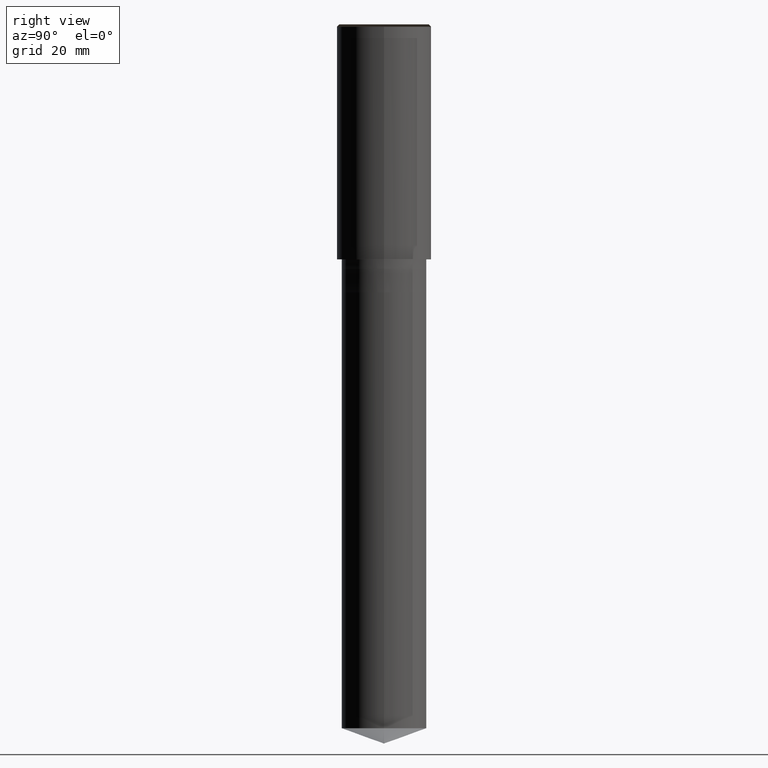
[diagram: clean part render]
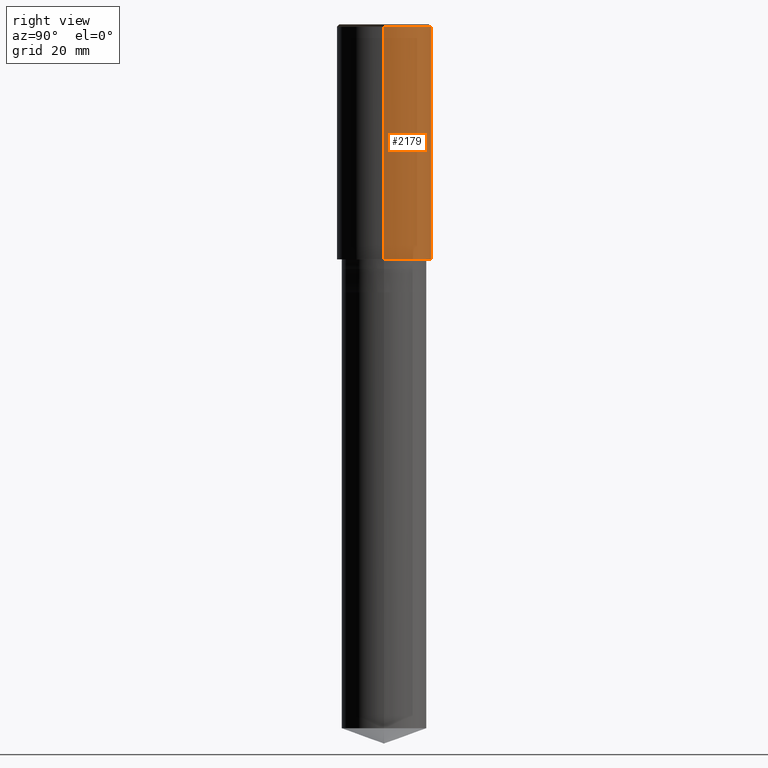
[diagram: same view with one face highlighted and labeled with its STEP entity id]
A machine part, right view. The second image highlights one B-rep face of the part: STEP entity #2179.
In plain terms, the highlighted face is a freeform B-spline surface patch.
Its self-contained STEP definition (entity closure, byte-faithful):
#1940=CARTESIAN_POINT('',(10.0,0.0,0.0));
#1941=CARTESIAN_POINT('',(10.0,10.0,0.0));
#1942=CARTESIAN_POINT('',(0.0,10.0,0.0));
#1943=CARTESIAN_POINT('',(-10.0,10.0,0.0));
#1944=CARTESIAN_POINT('',(-10.0,0.0,0.0));
#1945=CARTESIAN_POINT('',(10.0,0.0,49.5));
#1946=CARTESIAN_POINT('',(10.0,10.0,49.5));
#1947=CARTESIAN_POINT('',(0.0,10.0,49.5));
#1948=CARTESIAN_POINT('',(-10.0,10.0,49.5));
#1949=CARTESIAN_POINT('',(-10.0,0.0,49.5));
#2160=(
BOUNDED_SURFACE()
B_SPLINE_SURFACE(1,2,(
(#1940,#1941,#1942,#1943,#1944),
(#1945,#1946,#1947,#1948,#1949)
), .UNSPECIFIED.,.F.,.F.,.F.)
B_SPLINE_SURFACE_WITH_KNOTS((2,2),(3,2,3),(
0.0,1.0),(
0.0,0.5,1.0), .UNSPECIFIED.)
GEOMETRIC_REPRESENTATION_ITEM()
RATIONAL_B_SPLINE_SURFACE(((1.0,0.707106781187,1.0,0.707106781187,1.0),
(1.0,0.707106781187,1.0,0.707106781187,1.0)
))
REPRESENTATION_ITEM('')
SURFACE()
);
#2161=(
BOUNDED_CURVE()
B_SPLINE_CURVE(2,(#1944,#1943,#1942,#1941,#1940),.UNSPECIFIED.,.F.,.F.)
B_SPLINE_CURVE_WITH_KNOTS((3,2,3),
(0.0,0.5,1.0),.UNSPECIFIED.)
CURVE()
GEOMETRIC_REPRESENTATION_ITEM()
RATIONAL_B_SPLINE_CURVE((1.0,0.707106781187,1.0,0.707106781187,1.0))
REPRESENTATION_ITEM('')
);
#2162=(
BOUNDED_CURVE()
B_SPLINE_CURVE(1,(#1940,#1945),.UNSPECIFIED.,.F.,.F.)
B_SPLINE_CURVE_WITH_KNOTS((2,2),
(0.0,1.0),.UNSPECIFIED.)
CURVE()
GEOMETRIC_REPRESENTATION_ITEM()
RATIONAL_B_SPLINE_CURVE((1.0,1.0))
REPRESENTATION_ITEM('')
);
#2163=(
BOUNDED_CURVE()
B_SPLINE_CURVE(2,(#1945,#1946,#1947,#1948,#1949),.UNSPECIFIED.,.F.,.F.)
B_SPLINE_CURVE_WITH_KNOTS((3,2,3),
(0.0,0.5,1.0),.UNSPECIFIED.)
CURVE()
GEOMETRIC_REPRESENTATION_ITEM()
RATIONAL_B_SPLINE_CURVE((1.0,0.707106781187,1.0,0.707106781187,1.0))
REPRESENTATION_ITEM('')
);
#2164=(
BOUNDED_CURVE()
B_SPLINE_CURVE(1,(#1949,#1944),.UNSPECIFIED.,.F.,.F.)
B_SPLINE_CURVE_WITH_KNOTS((2,2),
(0.0,1.0),.UNSPECIFIED.)
CURVE()
GEOMETRIC_REPRESENTATION_ITEM()
RATIONAL_B_SPLINE_CURVE((1.0,1.0))
REPRESENTATION_ITEM('')
);
#2165=VERTEX_POINT('',#1940);
#2166=VERTEX_POINT('',#1944);
#2167=VERTEX_POINT('',#1945);
#2168=VERTEX_POINT('',#1949);
#2169=EDGE_CURVE('',#2166,#2165,#2161,.T.);
#2170=EDGE_CURVE('',#2165,#2167,#2162,.T.);
#2171=EDGE_CURVE('',#2167,#2168,#2163,.T.);
#2172=EDGE_CURVE('',#2168,#2166,#2164,.T.);
#2173=ORIENTED_EDGE('',*,*,#2169,.T.);
#2174=ORIENTED_EDGE('',*,*,#2170,.T.);
#2175=ORIENTED_EDGE('',*,*,#2171,.T.);
#2176=ORIENTED_EDGE('',*,*,#2172,.T.);
#2177=EDGE_LOOP('',(#2173,#2174,#2175,#2176));
#2178=FACE_OUTER_BOUND('',#2177,.T.);
#2179=ADVANCED_FACE('',(#2178),#2160,.T.);